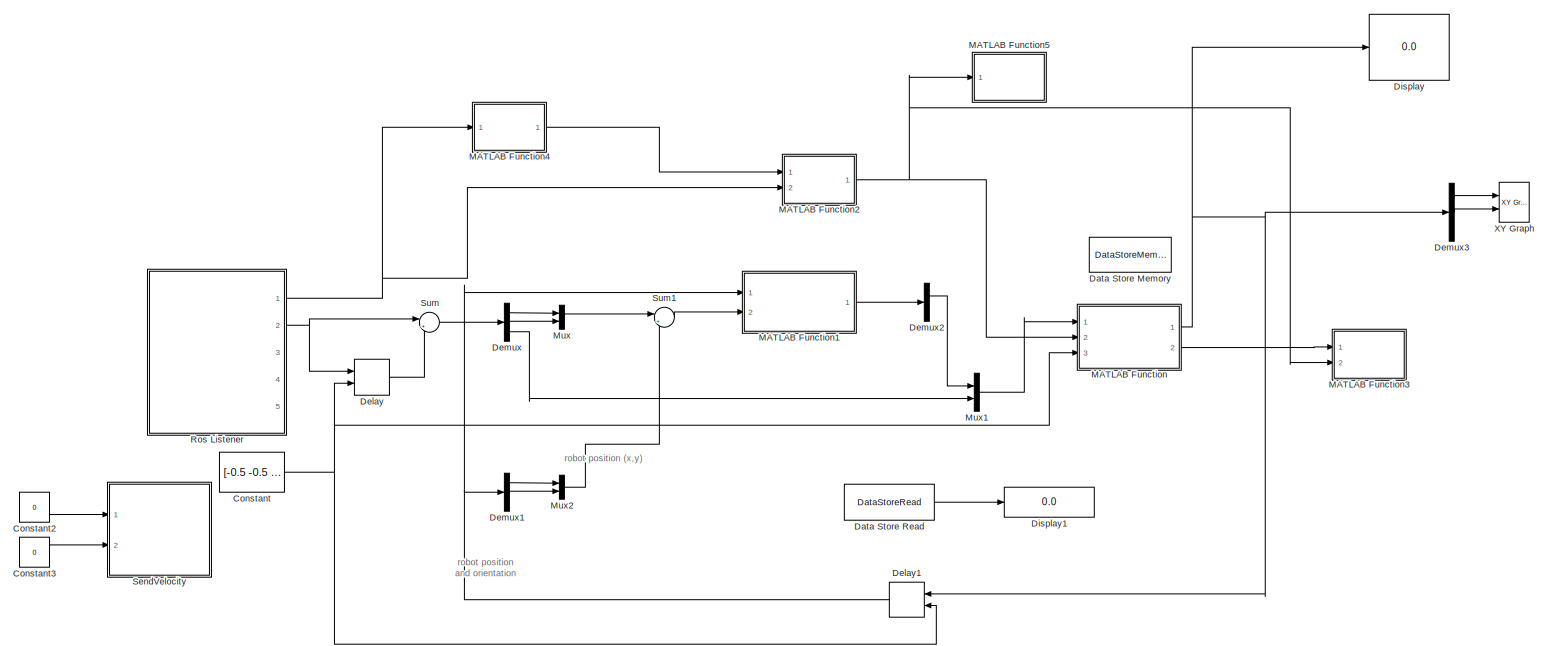
[diagram: root canvas - part 1/1, most of the canvas]
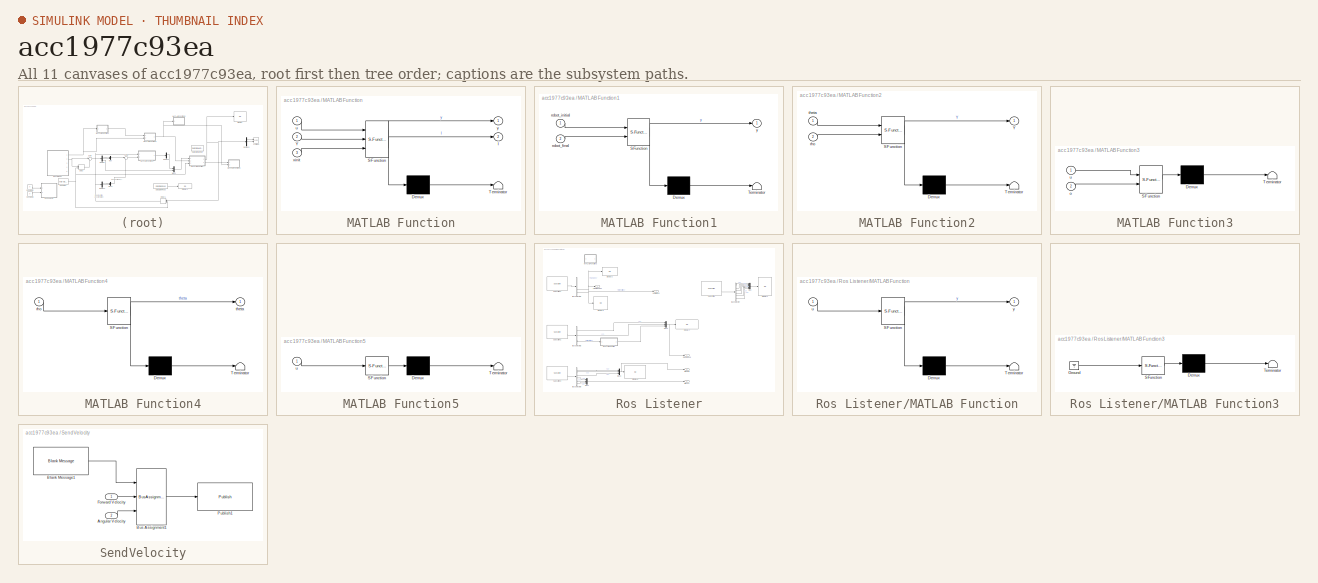
[diagram: thumbnail index - all 11 canvases of the model, root first then tree order]
MODEL slx_acc1977c93ea
KIND model
CONFIG AbsTol = auto
CONFIG EnableMultiTasking = off
CONFIG FixedStep = auto
CONFIG MaxStep = auto
CONFIG MinStep = auto
CONFIG RelTol = 1e-3
CONFIG SampleTimeConstraint = Unconstrained
CONFIG Solver = VariableStepAuto
CONFIG SolverName = VariableStepAuto
CONFIG StartTime = 0.0
CONFIG StopTime = 25
WORKSPACE source: MAT-file member
WORKSPACE SL_ROS_VariableLengthArrays_MaxSizes: struct (value not decoded)
BLOCK [Constant] Constant
  Value = [-0.5 -0.5 0]
BLOCK [Constant] Constant2
  Value = 0
BLOCK [Constant] Constant3
  Value = 0
BLOCK [DataStoreMemory] Data Store Memory
  DataStoreName = slam_bus
  OutDataTypeStr = Bus: slam_bus_t
  ReadBeforeWriteMsg = warning
  ShowAdditionalParam = off
  SignalType = real
  WriteAfterReadMsg = warning
  WriteAfterWriteMsg = warning
BLOCK [DataStoreRead] Data Store Read
  DataStoreElements = slam_bus.m
  DataStoreName = slam_bus
  Ports = [0, 1]
BLOCK [Delay] Delay
  DelayLength = 1
  InitialCondition = [-0.5 -0.5 0]
  InitialConditionSource = Input port
  InputPortMap = u0,p4
  Ports = [2, 1]
BLOCK [Delay] Delay1
  DelayLength = 1
  InitialCondition = zeros(3,1)
  InitialConditionSource = Input port
  InputPortMap = u0,p4
  Ports = [2, 1]
BLOCK [Demux] Demux
  DisplayOption = bar
  Outputs = 3
  Ports = [1, 3]
BLOCK [Demux] Demux1
  DisplayOption = bar
  Outputs = 3
  Ports = [1, 3]
BLOCK [Demux] Demux2
  DisplayOption = bar
  Outputs = 2
  Ports = [1, 2]
BLOCK [Demux] Demux3
  DisplayOption = bar
  Outputs = 3
  Ports = [1, 3]
BLOCK [Display] Display
  Decimation = 1
  Ports = [1]
BLOCK [Display] Display1
  Decimation = 1
  Ports = [1]
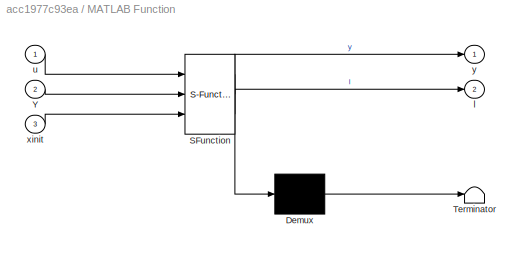
BLOCK [SubSystem] MATLAB Function
  ErrorFcn = Stateflow.Translate.translate
  PermitHierarchicalResolution = ExplicitOnly
  Ports = [3, 2]
  RequestExecContextInheritance = off
  SFBlockType = MATLAB Function
  TreatAsAtomicUnit = on
BLOCK [Demux] MATLAB Function/ Demux 
  Outputs = 1
  Ports = [1, 1]
BLOCK [S-Function] MATLAB Function/ SFunction 
  EnableBusSupport = on
  FunctionName = sf_sfun
  Parameters = q,s
  PortCounts = [3 3]
  Ports = [3, 3]
  SFcnIsStateOwnerBlock = off
  SFunctionDeploymentMode = off
  Tag = Stateflow S-Function slam 2
BLOCK [Terminator] MATLAB Function/ Terminator 
BLOCK [Inport] MATLAB Function/Y
  IconDisplay = Port number
  Port = 2
BLOCK [Outport] MATLAB Function/l
  IconDisplay = Port number
  Port = 2
BLOCK [Inport] MATLAB Function/u
  IconDisplay = Port number
BLOCK [Inport] MATLAB Function/xinit
  IconDisplay = Port number
  Port = 3
BLOCK [Outport] MATLAB Function/y
  IconDisplay = Port number
BLOCK [SubSystem] MATLAB Function1
  ErrorFcn = Stateflow.Translate.translate
  PermitHierarchicalResolution = ExplicitOnly
  Ports = [2, 1]
  RequestExecContextInheritance = off
  SFBlockType = MATLAB Function
  TreatAsAtomicUnit = on
BLOCK [Demux] MATLAB Function1/ Demux 
  Outputs = 1
  Ports = [1, 1]
BLOCK [S-Function] MATLAB Function1/ SFunction 
  EnableBusSupport = on
  FunctionName = sf_sfun
  PortCounts = [2 2]
  Ports = [2, 2]
  SFcnIsStateOwnerBlock = off
  SFunctionDeploymentMode = off
  Tag = Stateflow S-Function slam 1
BLOCK [Terminator] MATLAB Function1/ Terminator 
BLOCK [Inport] MATLAB Function1/robot_final
  IconDisplay = Port number
  Port = 2
BLOCK [Inport] MATLAB Function1/robot_initial
  IconDisplay = Port number
BLOCK [Outport] MATLAB Function1/y
  IconDisplay = Port number
BLOCK [SubSystem] MATLAB Function2
  ErrorFcn = Stateflow.Translate.translate
  PermitHierarchicalResolution = ExplicitOnly
  Ports = [2, 1]
  RequestExecContextInheritance = off
  SFBlockType = MATLAB Function
  TreatAsAtomicUnit = on
BLOCK [Demux] MATLAB Function2/ Demux 
  Outputs = 1
  Ports = [1, 1]
BLOCK [S-Function] MATLAB Function2/ SFunction 
  EnableBusSupport = on
  FunctionName = sf_sfun
  PortCounts = [2 2]
  Ports = [2, 2]
  SFcnIsStateOwnerBlock = off
  SFunctionDeploymentMode = off
  Tag = Stateflow S-Function slam 4
BLOCK [Terminator] MATLAB Function2/ Terminator 
BLOCK [Outport] MATLAB Function2/Y
  IconDisplay = Port number
BLOCK [Inport] MATLAB Function2/rho
  IconDisplay = Port number
  Port = 2
BLOCK [Inport] MATLAB Function2/theta
  IconDisplay = Port number
BLOCK [SubSystem] MATLAB Function3
  ErrorFcn = Stateflow.Translate.translate
  PermitHierarchicalResolution = ExplicitOnly
  Ports = [2]
  RequestExecContextInheritance = off
  SFBlockType = MATLAB Function
  TreatAsAtomicUnit = on
BLOCK [Demux] MATLAB Function3/ Demux 
  Outputs = 1
  Ports = [1, 1]
BLOCK [S-Function] MATLAB Function3/ SFunction 
  EnableBusSupport = on
  FunctionName = sf_sfun
  PortCounts = [2 1]
  Ports = [2, 1]
  SFcnIsStateOwnerBlock = off
  SFunctionDeploymentMode = off
  Tag = Stateflow S-Function slam 5
BLOCK [Terminator] MATLAB Function3/ Terminator 
BLOCK [Inport] MATLAB Function3/o
  IconDisplay = Port number
  Port = 2
BLOCK [Inport] MATLAB Function3/u
  IconDisplay = Port number
BLOCK [SubSystem] MATLAB Function4
  ErrorFcn = Stateflow.Translate.translate
  PermitHierarchicalResolution = ExplicitOnly
  Ports = [1, 1]
  RequestExecContextInheritance = off
  SFBlockType = MATLAB Function
  TreatAsAtomicUnit = on
BLOCK [Demux] MATLAB Function4/ Demux 
  Outputs = 1
  Ports = [1, 1]
BLOCK [S-Function] MATLAB Function4/ SFunction 
  EnableBusSupport = on
  FunctionName = sf_sfun
  PortCounts = [1 2]
  Ports = [1, 2]
  SFcnIsStateOwnerBlock = off
  SFunctionDeploymentMode = off
  Tag = Stateflow S-Function slam 7
BLOCK [Terminator] MATLAB Function4/ Terminator 
BLOCK [Inport] MATLAB Function4/rho
  IconDisplay = Port number
BLOCK [Outport] MATLAB Function4/theta
  IconDisplay = Port number
BLOCK [SubSystem] MATLAB Function5
  Commented = on
  ErrorFcn = Stateflow.Translate.translate
  PermitHierarchicalResolution = ExplicitOnly
  Ports = [1]
  RequestExecContextInheritance = off
  SFBlockType = MATLAB Function
  TreatAsAtomicUnit = on
BLOCK [Demux] MATLAB Function5/ Demux 
  Outputs = 1
  Ports = [1, 1]
BLOCK [S-Function] MATLAB Function5/ SFunction 
  EnableBusSupport = on
  FunctionName = sf_sfun
  PortCounts = [1 1]
  Ports = [1, 1]
  SFcnIsStateOwnerBlock = off
  SFunctionDeploymentMode = off
  Tag = Stateflow S-Function slam 8
BLOCK [Terminator] MATLAB Function5/ Terminator 
BLOCK [Inport] MATLAB Function5/u
  IconDisplay = Port number
BLOCK [Mux] Mux
  DisplayOption = bar
  Inputs = 2
  Ports = [2, 1]
BLOCK [Mux] Mux1
  DisplayOption = bar
  Inputs = 2
  Ports = [2, 1]
BLOCK [Mux] Mux2
  DisplayOption = bar
  Inputs = 2
  Ports = [2, 1]
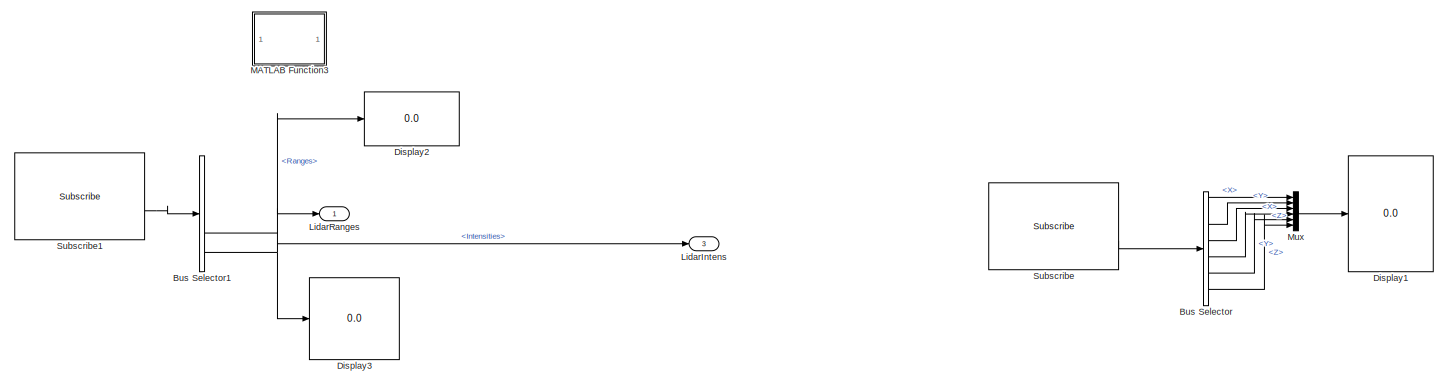
[diagram: Ros Listener - part 1/2, full width, top band]
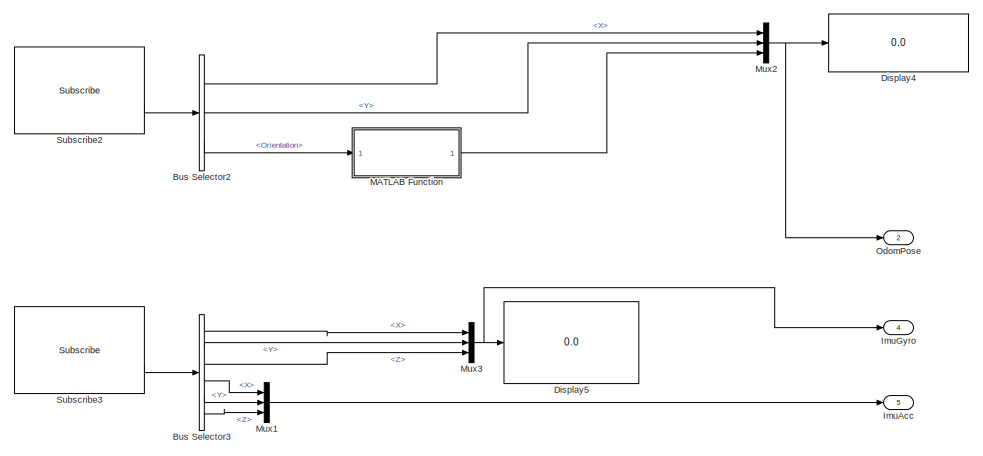
[diagram: Ros Listener - part 2/2, bottom center region]
BLOCK [SubSystem] Ros Listener
  Ports = [0, 5]
  RequestExecContextInheritance = off
BLOCK [BusSelector] Ros Listener/Bus Selector
  OutputAsBus = off
  OutputSignals = Linear.X,Linear.Y,Linear.Z,Angular.X,Angular.Y,Angular.Z
  Ports = [1, 6]
BLOCK [BusSelector] Ros Listener/Bus Selector1
  OutputAsBus = off
  OutputSignals = AngleMin,AngleMax,AngleIncrement,Ranges,Intensities
  Ports = [1, 5]
BLOCK [BusSelector] Ros Listener/Bus Selector2
  OutputAsBus = off
  OutputSignals = Pose.Pose.Position.X,Pose.Pose.Position.Y,Pose.Pose.Orientation
  Ports = [1, 3]
BLOCK [BusSelector] Ros Listener/Bus Selector3
  Commented = on
  OutputAsBus = off
  OutputSignals = AngularVelocity.X,AngularVelocity.Y,AngularVelocity.Z,LinearAcceleration.X,LinearAcceleration.Y,LinearAcceleration.Z
  Ports = [1, 6]
BLOCK [Display] Ros Listener/Display1
  Decimation = 1
  Ports = [1]
BLOCK [Display] Ros Listener/Display2
  Decimation = 1
  Ports = [1]
BLOCK [Display] Ros Listener/Display3
  Commented = on
  Decimation = 1
  Ports = [1]
BLOCK [Display] Ros Listener/Display4
  Decimation = 1
  Ports = [1]
BLOCK [Display] Ros Listener/Display5
  Commented = on
  Decimation = 1
  Ports = [1]
BLOCK [Outport] Ros Listener/ImuAcc
  IconDisplay = Port number
  Port = 5
BLOCK [Outport] Ros Listener/ImuGyro
  IconDisplay = Port number
  Port = 4
BLOCK [Outport] Ros Listener/LidarIntens
  IconDisplay = Port number
  Port = 3
BLOCK [Outport] Ros Listener/LidarRanges
  IconDisplay = Port number
BLOCK [SubSystem] Ros Listener/MATLAB Function
  ErrorFcn = Stateflow.Translate.translate
  PermitHierarchicalResolution = ExplicitOnly
  Ports = [1, 1]
  RequestExecContextInheritance = off
  SFBlockType = MATLAB Function
  TreatAsAtomicUnit = on
BLOCK [Demux] Ros Listener/MATLAB Function/ Demux 
  Outputs = 1
  Ports = [1, 1]
BLOCK [S-Function] Ros Listener/MATLAB Function/ SFunction 
  EnableBusSupport = on
  FunctionName = sf_sfun
  PortCounts = [1 2]
  Ports = [1, 2]
  SFcnIsStateOwnerBlock = off
  SFunctionDeploymentMode = off
  Tag = Stateflow S-Function slam 3
BLOCK [Terminator] Ros Listener/MATLAB Function/ Terminator 
BLOCK [Inport] Ros Listener/MATLAB Function/u
  IconDisplay = Port number
BLOCK [Outport] Ros Listener/MATLAB Function/y
  IconDisplay = Port number
BLOCK [SubSystem] Ros Listener/MATLAB Function3
  Commented = on
  ErrorFcn = Stateflow.Translate.translate
  PermitHierarchicalResolution = ExplicitOnly
  Ports = []
  RequestExecContextInheritance = off
  SFBlockType = MATLAB Function
  TreatAsAtomicUnit = on
BLOCK [Demux] Ros Listener/MATLAB Function3/ Demux 
  Outputs = 1
  Ports = [1, 1]
BLOCK [Ground] Ros Listener/MATLAB Function3/ Ground 
BLOCK [S-Function] Ros Listener/MATLAB Function3/ SFunction 
  EnableBusSupport = on
  FunctionName = sf_sfun
  PortCounts = [1 1]
  Ports = [1, 1]
  SFcnIsStateOwnerBlock = off
  SFunctionDeploymentMode = off
  Tag = Stateflow S-Function slam 6
BLOCK [Terminator] Ros Listener/MATLAB Function3/ Terminator 
BLOCK [Mux] Ros Listener/Mux
  DisplayOption = bar
  Inputs = 6
  Ports = [6, 1]
BLOCK [Mux] Ros Listener/Mux1
  Commented = on
  DisplayOption = bar
  Inputs = 3
  Ports = [3, 1]
BLOCK [Mux] Ros Listener/Mux2
  DisplayOption = bar
  Inputs = 3
  Ports = [3, 1]
BLOCK [Mux] Ros Listener/Mux3
  Commented = on
  DisplayOption = bar
  Inputs = 3
  Ports = [3, 1]
BLOCK [Outport] Ros Listener/OdomPose
  IconDisplay = Port number
  Port = 2
BLOCK [Reference] Ros Listener/Subscribe  REF=robotlib/Subscribe
  Ports = [0, 2]
  SourceBlock = robotlib/Subscribe
  SourceLibraryInfo = This block requires Robotics System Toolbox
  SourceProductBaseCode = RO
  SourceProductName = Robotics System Toolbox
  SourceType = ROS Subscribe
BLOCK [Reference] Ros Listener/Subscribe1  REF=robotlib/Subscribe
  Ports = [0, 2]
  SourceBlock = robotlib/Subscribe
  SourceLibraryInfo = This block requires Robotics System Toolbox
  SourceProductBaseCode = RO
  SourceProductName = Robotics System Toolbox
  SourceType = ROS Subscribe
BLOCK [Reference] Ros Listener/Subscribe2  REF=robotlib/Subscribe
  Ports = [0, 2]
  SourceBlock = robotlib/Subscribe
  SourceLibraryInfo = This block requires Robotics System Toolbox
  SourceProductBaseCode = RO
  SourceProductName = Robotics System Toolbox
  SourceType = ROS Subscribe
BLOCK [Reference] Ros Listener/Subscribe3  REF=robotlib/Subscribe
  Commented = on
  Ports = [0, 2]
  SourceBlock = robotlib/Subscribe
  SourceLibraryInfo = This block requires Robotics System Toolbox
  SourceProductBaseCode = RO
  SourceProductName = Robotics System Toolbox
  SourceType = ROS Subscribe
BLOCK [SubSystem] SendVelocity
  Ports = [2]
  RequestExecContextInheritance = off
BLOCK [Inport] SendVelocity/Angular Velocity
  IconDisplay = Port number
  Port = 2
BLOCK [Reference] SendVelocity/Blank Message1  REF=robotlib/Blank Message
  Ports = [0, 1]
  SourceBlock = robotlib/Blank Message
  SourceLibraryInfo = This block requires Robotics System Toolbox
  SourceProductBaseCode = RO
  SourceProductName = Robotics System Toolbox
  SourceType = ROS Blank Message
BLOCK [BusAssignment] SendVelocity/Bus Assignment1
  AssignedSignals = Linear.X,Angular.Z
  Ports = [3, 1]
BLOCK [Inport] SendVelocity/Forward Velocity
  IconDisplay = Port number
BLOCK [Reference] SendVelocity/Publish1  REF=robotlib/Publish
  Ports = [1]
  SourceBlock = robotlib/Publish
  SourceLibraryInfo = This block requires Robotics System Toolbox
  SourceProductBaseCode = RO
  SourceProductName = Robotics System Toolbox
  SourceType = ROS Publish
BLOCK [Sum] Sum
  IconShape = round
  InputSameDT = off
  Inputs = |+-
  OutDataTypeStr = Inherit: Inherit via internal rule
  Ports = [2, 1]
  SaturateOnIntegerOverflow = off
BLOCK [Sum] Sum1
  IconShape = round
  InputSameDT = off
  Inputs = |++
  OutDataTypeStr = Inherit: Inherit via internal rule
  Ports = [2, 1]
  SaturateOnIntegerOverflow = off
BLOCK [Reference] XY Graph  REF=simulink/Sinks/XY Graph
  Ports = [2]
  SourceBlock = simulink/Sinks/XY Graph
  SourceProductBaseCode = SL
  SourceProductName = Simulink
  SourceType = XY scope.
ANNOTATION (root): robot position and orientation
ANNOTATION (root): robot position (x,y)
LINE Constant2:1 -> SendVelocity:1
LINE Constant3:1 -> SendVelocity:2
NET Constant:1 -> Delay1:2, Delay:2, MATLAB Function:3
LINE Data Store Read:1 -> Display1:1
NET Delay1:1 -> Demux1:1, MATLAB Function1:1
LINE Delay:1 -> Sum:2
LINE Demux1:1 -> Mux2:1
LINE Demux1:2 -> Mux2:2
LINE Demux2:1 -> Mux1:1
LINE Demux3:1 -> XY Graph:1
LINE Demux3:2 -> XY Graph:2
LINE Demux:1 -> Mux:1
LINE Demux:2 -> Mux:2
LINE Demux:3 -> Mux1:2
LINE MATLAB Function1:1 -> Demux2:1
NET MATLAB Function2:1 -> MATLAB Function3:2, MATLAB Function5:1, MATLAB Function:2
LINE MATLAB Function4:1 -> MATLAB Function2:1
NET MATLAB Function:1 -> Delay1:1, Demux3:1, Display:1
LINE MATLAB Function:2 -> MATLAB Function3:1
LINE Mux1:1 -> MATLAB Function:1
LINE Mux2:1 -> Sum1:2
LINE Mux:1 -> Sum1:1
NET Ros Listener/Bus Selector1:4 -> Ros Listener/Display2:1, Ros Listener/LidarRanges:1
NET Ros Listener/Bus Selector1:5 -> Ros Listener/Display3:1, Ros Listener/LidarIntens:1
LINE Ros Listener/Bus Selector2:1 -> Ros Listener/Mux2:1
LINE Ros Listener/Bus Selector2:2 -> Ros Listener/Mux2:2
LINE Ros Listener/Bus Selector2:3 -> Ros Listener/MATLAB Function:1
LINE Ros Listener/Bus Selector3:1 -> Ros Listener/Mux3:1
LINE Ros Listener/Bus Selector3:2 -> Ros Listener/Mux3:2
LINE Ros Listener/Bus Selector3:3 -> Ros Listener/Mux3:3
LINE Ros Listener/Bus Selector3:4 -> Ros Listener/Mux1:1
LINE Ros Listener/Bus Selector3:5 -> Ros Listener/Mux1:2
LINE Ros Listener/Bus Selector3:6 -> Ros Listener/Mux1:3
LINE Ros Listener/Bus Selector:1 -> Ros Listener/Mux:1
LINE Ros Listener/Bus Selector:2 -> Ros Listener/Mux:2
LINE Ros Listener/Bus Selector:3 -> Ros Listener/Mux:3
LINE Ros Listener/Bus Selector:4 -> Ros Listener/Mux:4
LINE Ros Listener/Bus Selector:5 -> Ros Listener/Mux:5
LINE Ros Listener/Bus Selector:6 -> Ros Listener/Mux:6
LINE Ros Listener/MATLAB Function:1 -> Ros Listener/Mux2:3
LINE Ros Listener/Mux1:1 -> Ros Listener/ImuAcc:1
NET Ros Listener/Mux2:1 -> Ros Listener/Display4:1, Ros Listener/OdomPose:1
NET Ros Listener/Mux3:1 -> Ros Listener/Display5:1, Ros Listener/ImuGyro:1
LINE Ros Listener/Mux:1 -> Ros Listener/Display1:1
LINE Ros Listener/Subscribe1:2 -> Ros Listener/Bus Selector1:1
LINE Ros Listener/Subscribe2:2 -> Ros Listener/Bus Selector2:1
LINE Ros Listener/Subscribe3:2 -> Ros Listener/Bus Selector3:1
LINE Ros Listener/Subscribe:2 -> Ros Listener/Bus Selector:1
NET Ros Listener:1 -> MATLAB Function2:2, MATLAB Function4:1
NET Ros Listener:2 -> Delay:1, Sum:1
LINE SendVelocity/Angular Velocity:1 -> SendVelocity/Bus Assignment1:3
LINE SendVelocity/Blank Message1:1 -> SendVelocity/Bus Assignment1:1
LINE SendVelocity/Bus Assignment1:1 -> SendVelocity/Publish1:1
LINE SendVelocity/Forward Velocity:1 -> SendVelocity/Bus Assignment1:2
LINE Sum1:1 -> MATLAB Function1:2
LINE Sum:1 -> Demux:1
note: NET lines group one-source signal fan-out (src -> all destinations, sorted); 1:1 wires keep LINE
CHART MATLAB Function1 states=1 transitions=1
  STATE_LABEL 'eML_blk_kernel()'
  STATE_LABEL 'SCRIPT:\nfunction y = fcn(robot_initial, robot_final)\n\ny = toFrame(robot_initial, robot_final);\n\nend\n\nfunction [pf, PF_f, PF_p] = toFrame(F , p)\n% TOFRAME transform point P from global frame to frame F\n%\n% In:\n%   F:      reference frame F = [f x ; f y ; f alpha]\n%   p:      point in global frame p = [p x ; p y]\n% Out:\n%   pf:     point in frame F\n%   PF_f:   Jacobian wrt F\n%   PF_p:   Jacobian wrt...<+390ch>'
CHART MATLAB Function states=1 transitions=1
  STATE_LABEL 'eML_blk_kernel()'
  STATE_LABEL 'SCRIPT:\nfunction [y, l] = fcn(u, Y, q, s, xinit)\n\nglobal slam_bus;\n\nr = [1 2 3];\n\nslam_bus_copy = slam_bus;\n\nif ~slam_bus_copy.first\n    slam_bus_copy.x(r) = xinit;\n    slam_bus_copy.first = true;\nend\n\nidx = randperm(length(Y));\n% idx = idx(randperm(length(idx)));\nY = Y(:, idx);\n\nslam_bus = ekf_slam(slam_bus_copy, u, Y, s, q);\n\ny = slam_bus.x(r);\nl = slam_bus.x(4:end);\n\nfprintf("The numer of landm...<+3608ch>'
CHART Ros Listener/MATLAB Function states=1 transitions=1
  STATE_LABEL 'eML_blk_kernel()'
  STATE_LABEL 'SCRIPT:\nfunction y = Orientation2Yaw(u)\n\nx = quat2eul([u.W u.X u.Y u.Z]);\ny = x(1);'
CHART MATLAB Function2 states=1 transitions=1
  STATE_LABEL 'eML_blk_kernel()'
  STATE_LABEL "SCRIPT:\nfunction Y = fcn(theta, rho)\n\nY = [rho'; theta'];\n"
CHART MATLAB Function3 states=1 transitions=1
  STATE_LABEL 'eML_blk_kernel()'
  STATE_LABEL "SCRIPT:\nfunction fcn(u, o)\n\nm = numel(u)/2;\n\nlids = 3+1:3+m*2;\nidxx = mod(lids,2);\n\nidx = find(~idxx);\nidy = find(idxx);\n\nlx   = u(idx); % all x-coordinates\nly   = u(idy); % all y-coordinates\n\n% lx(lx==0 && ly==0) = [];\n% ly(lx==0 && ly==0) = [];\n\nx = zeros(1, length(o));\ny = x;\n\nfor i = 1:length(u)\n    x(i) = o(1, i) * cos(o(2, i));\n    y(i) = o(1, i) * sin(o(2, i));\nend\n\nplot(lx,ly, '.b', x, y, ...<+49ch>"
CHART Ros Listener/MATLAB Function3 states=1 transitions=1
  STATE_LABEL 'eML_blk_kernel()'
  STATE_LABEL "SCRIPT:\nfunction fcn()\n\nscansub = rossubscriber('/scan');\nscan = receive(scansub);\n\ncartScanData = scan.readCartesian;\ncartScanData(:,3) = 0;\nhomScanData = cart2hom(cartScanData);\n\n[angles,ranges] = cart2pol(homScanData(:,1),...\n                           homScanData(:,2));\n                       \n[x,y] = pol2cart(angles,ranges);\n\ncoder.extrinsic('plot');\nplot(x,y, '.');\nxlim([-5,5]);\nylim([-5,5])...<+232ch>"
CHART MATLAB Function4 states=1 transitions=1
  STATE_LABEL 'eML_blk_kernel()'
  STATE_LABEL "SCRIPT:\nfunction theta = fcn(rho)\nN = length(rho);\ntheta = (0:N-1)';\ntheta = theta * pi * 2 / N;\n"
CHART MATLAB Function5 states=1 transitions=1
  STATE_LABEL 'eML_blk_kernel()'
  STATE_LABEL "SCRIPT:\nfunction fcn(u)\n\nx = zeros(1, length(u));\ny = x;\n\nfor i = 1:length(u)\n    x(i) = u(1, i) * cos(u(2, i));\n    y(i) = u(1, i) * sin(u(2, i));\nend\n\n%plot(x,y, 'r.');\n%drawnow;\n\nend\n"
